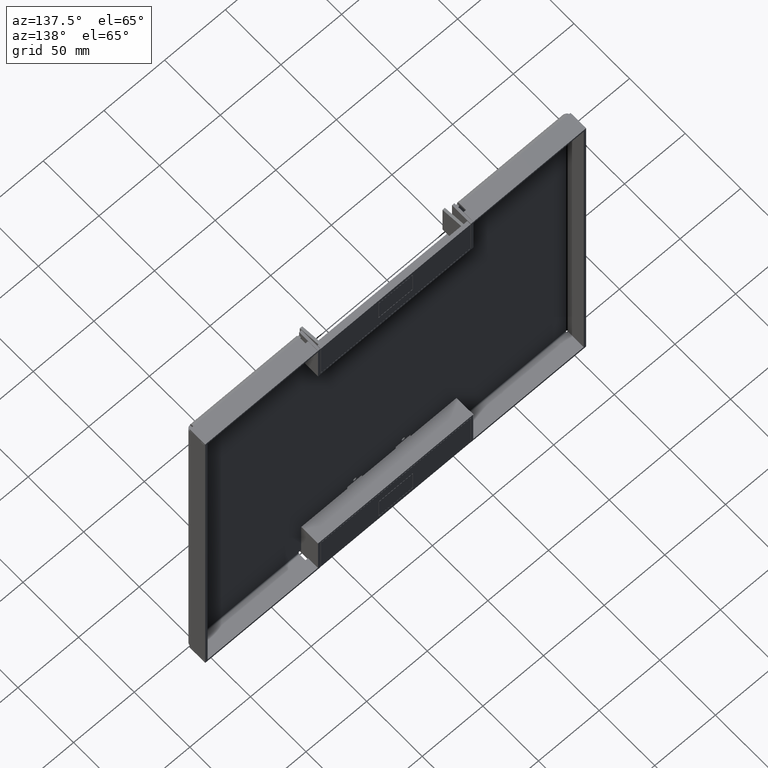
[diagram: clean part render]
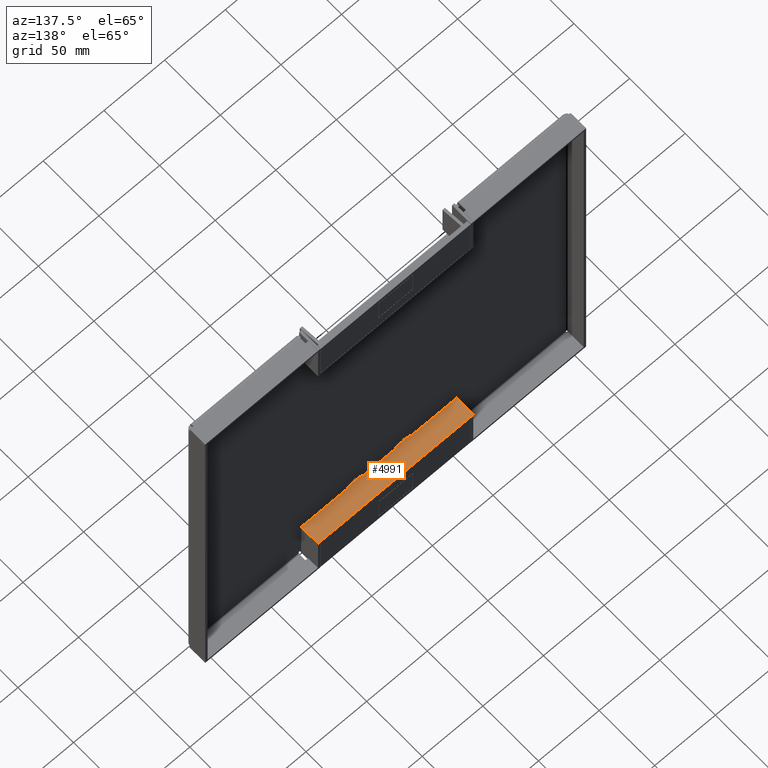
[diagram: same view with one face highlighted and labeled with its STEP entity id]
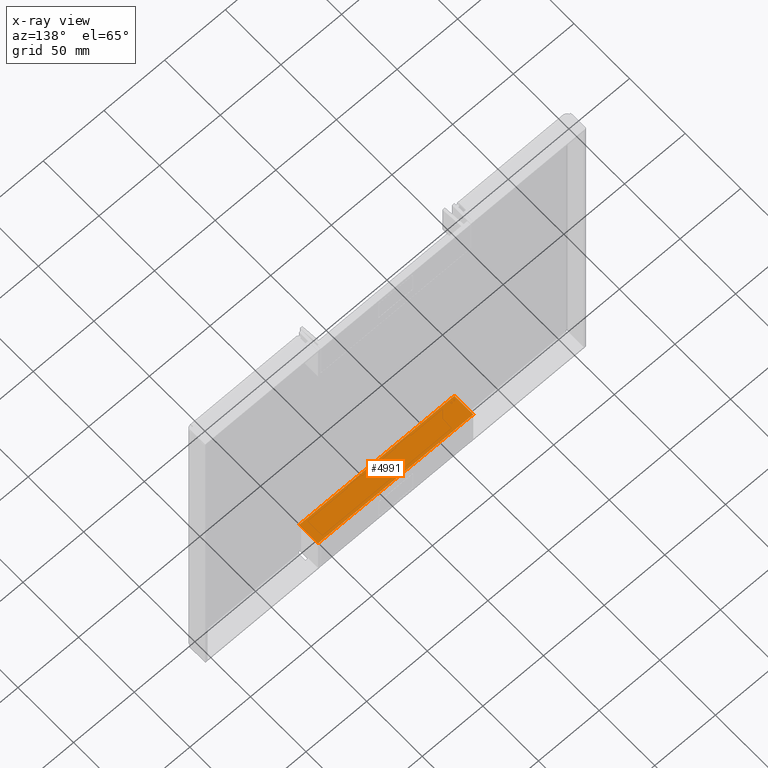
[diagram: x-ray of the same camera — body ghosted, the highlighted face saturated]
A machine part, auxiliary view. The second image highlights one B-rep face of the part: STEP entity #4991.
The next image is the same camera in x-ray: the body ghosted, the highlighted face saturated — about 0% of this face is hidden behind the body in this view.
In plain terms, the highlighted planar face has unit normal (0, 0, 1).
Its self-contained STEP definition (entity closure, byte-faithful):
#4744=DIRECTION('',(-1.E0,0.E0,0.E0));
#4745=VECTOR('',#4744,1.28E2);
#4746=CARTESIAN_POINT('',(6.4E1,0.E0,-3.7E1));
#4747=LINE('',#4746,#4745);
#4758=DIRECTION('',(1.E0,0.E0,0.E0));
#4759=VECTOR('',#4758,1.28E2);
#4760=CARTESIAN_POINT('',(-6.4E1,1.7E1,-3.7E1));
#4761=LINE('',#4760,#4759);
#4793=DIRECTION('',(0.E0,-1.E0,0.E0));
#4794=VECTOR('',#4793,1.7E1);
#4795=CARTESIAN_POINT('',(-6.4E1,1.7E1,-3.7E1));
#4796=LINE('',#4795,#4794);
#4807=DIRECTION('',(0.E0,-1.E0,0.E0));
#4808=VECTOR('',#4807,1.7E1);
#4809=CARTESIAN_POINT('',(6.4E1,1.7E1,-3.7E1));
#4810=LINE('',#4809,#4808);
#4892=CARTESIAN_POINT('',(6.4E1,0.E0,-3.7E1));
#4893=VERTEX_POINT('',#4892);
#4894=CARTESIAN_POINT('',(-6.4E1,0.E0,-3.7E1));
#4895=VERTEX_POINT('',#4894);
#4904=CARTESIAN_POINT('',(-6.4E1,1.7E1,-3.7E1));
#4905=CARTESIAN_POINT('',(6.4E1,1.7E1,-3.7E1));
#4906=VERTEX_POINT('',#4904);
#4907=VERTEX_POINT('',#4905);
#4978=CARTESIAN_POINT('',(0.E0,0.E0,-3.7E1));
#4979=DIRECTION('',(0.E0,0.E0,-1.E0));
#4980=DIRECTION('',(-1.E0,0.E0,0.E0));
#4981=AXIS2_PLACEMENT_3D('',#4978,#4979,#4980);
#4982=PLANE('',#4981);
#4983=ORIENTED_EDGE('',*,*,#4929,.F.);
#4985=ORIENTED_EDGE('',*,*,#4984,.F.);
#4986=ORIENTED_EDGE('',*,*,#4960,.F.);
#4988=ORIENTED_EDGE('',*,*,#4987,.T.);
#4989=EDGE_LOOP('',(#4983,#4985,#4986,#4988));
#4990=FACE_OUTER_BOUND('',#4989,.F.);
#4929=EDGE_CURVE('',#4893,#4895,#4747,.T.);
#4960=EDGE_CURVE('',#4906,#4907,#4761,.T.);
#4984=EDGE_CURVE('',#4907,#4893,#4810,.T.);
#4987=EDGE_CURVE('',#4906,#4895,#4796,.T.);
#4991=ADVANCED_FACE('',(#4990),#4982,.T.);